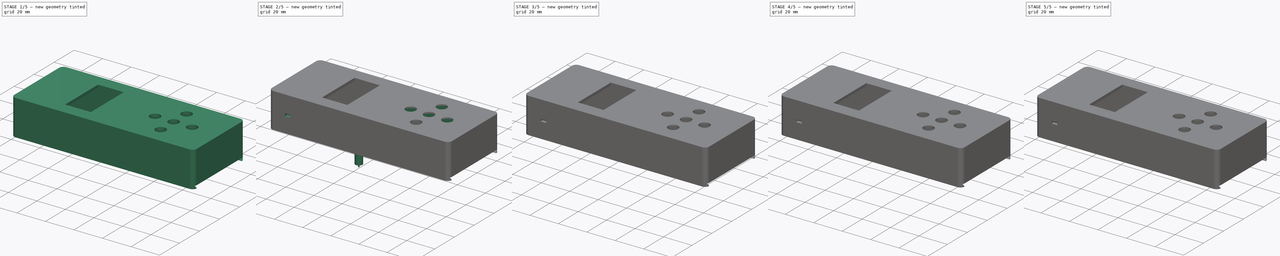
[diagram: build sequence overview — one tinted view per stage of 5, left to right]
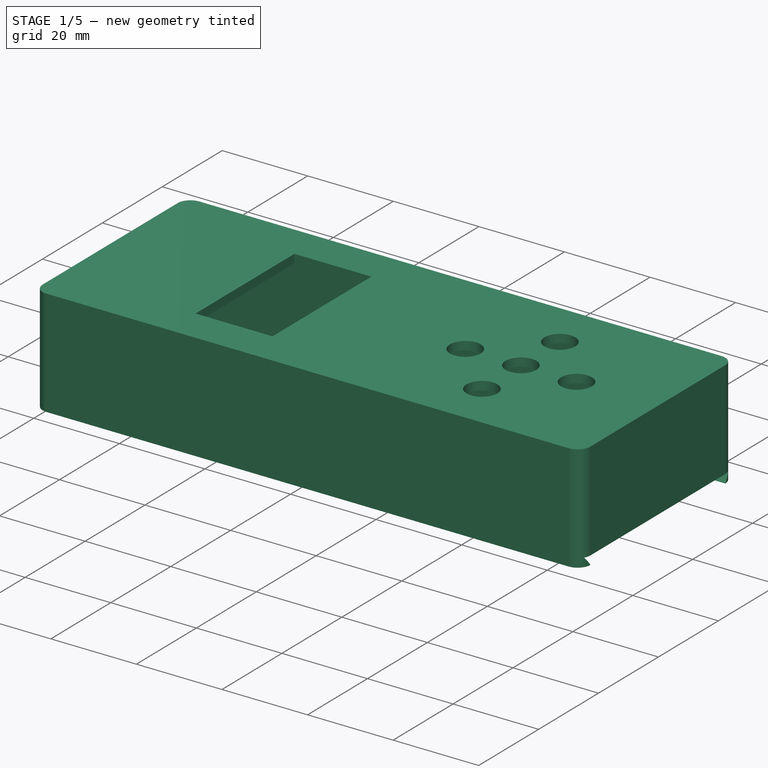
[diagram: stage 1 of 5 — iso view after this stage's code; geometry added in this stage tinted green]
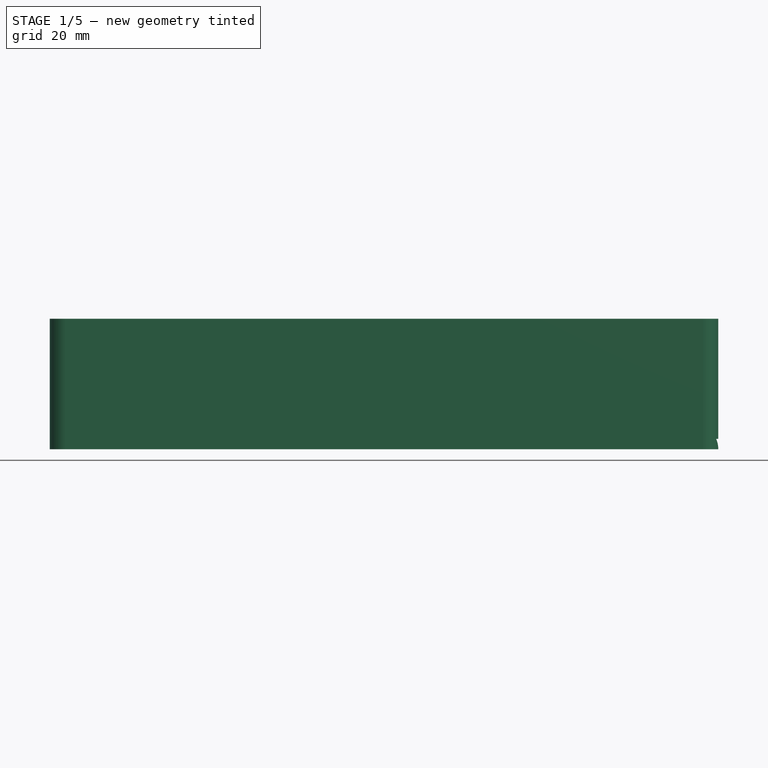
[diagram: stage 1 of 5 — front view after this stage's code; geometry added in this stage tinted green]
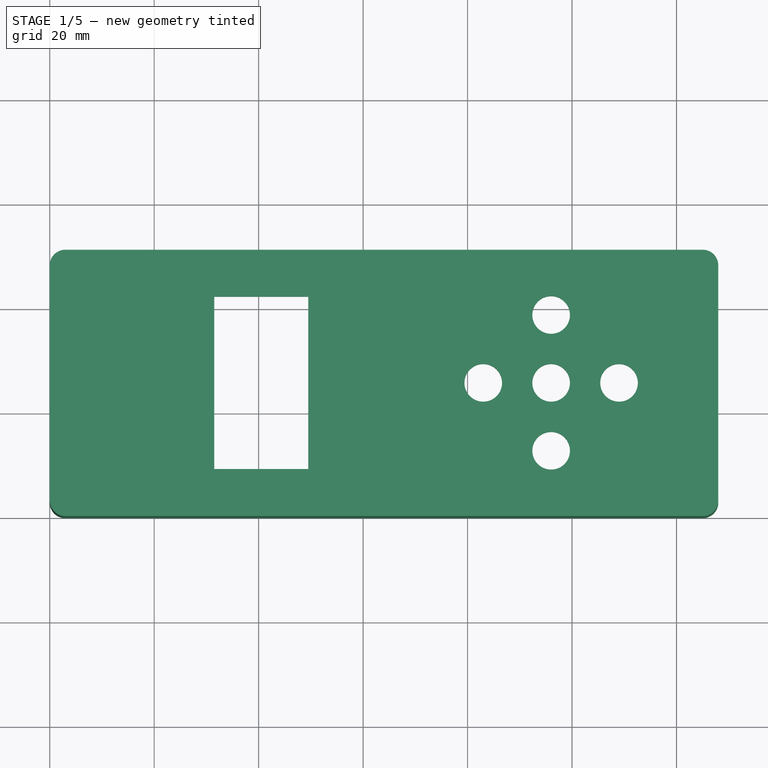
[diagram: stage 1 of 5 — top view after this stage's code; geometry added in this stage tinted green]
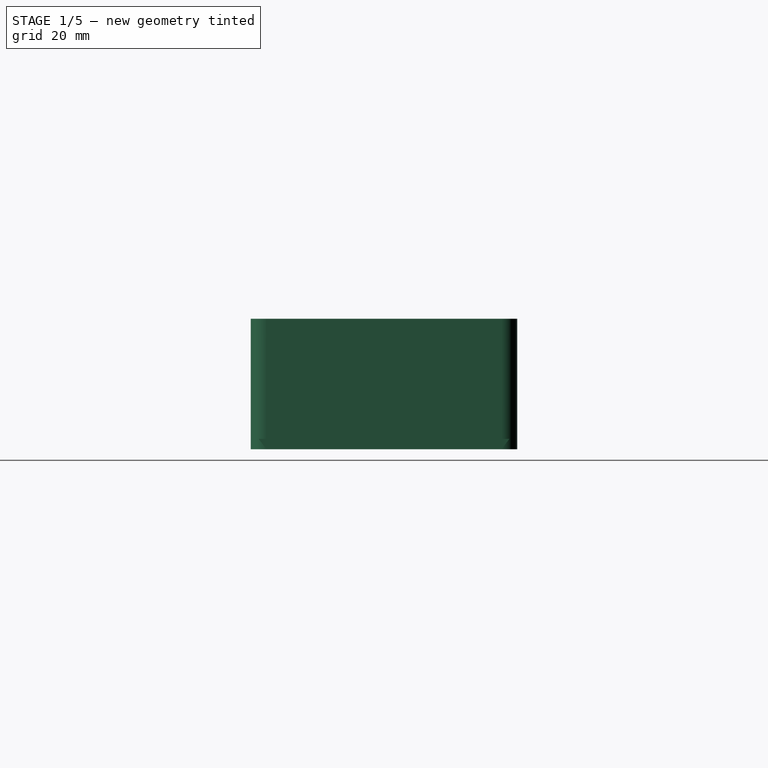
[diagram: stage 1 of 5 — right view after this stage's code; geometry added in this stage tinted green]
FCSTD DOCUMENT  (FreeCAD 0.16R)
Label: front_case_v2_3
License: All rights reserved
LicenseURL: http://en.wikipedia.org/wiki/All_rights_reserved
objects: Sketcher::SketchObject×24, PartDesign::Pocket×12, Part::Cylinder×12, PartDesign::Pad×12, Part::Box×4, Part::MultiFuse×3, Part::Fillet×1, Part::MultiCommon×1
note: 93 computed .brp shape members not serialized (recipe doc carries the construction recipe); baked Part::Feature solids carry a one-line shape summary decoded from their .brp

FEATURE [Part::Box] Box019  label="base"
  Height = 25
  Length = 128
  Width = 51
FEATURE [Sketcher::SketchObject] Sketch019
  ExternalGeometry = -> [Box019]
  Placement = pos=(0,0,0) rot=(1,0,0;3.14159rad)
  Support = -> Box019 [Face5]
  sketch-geometry (4):
    g0: LineSegment StartX=3 StartY=-3 StartZ=0 EndX=125 EndY=-3 EndZ=0
    g1: LineSegment StartX=125 StartY=-3 StartZ=0 EndX=125 EndY=-48 EndZ=0
    g2: LineSegment StartX=125 StartY=-48 StartZ=0 EndX=3 EndY=-48 EndZ=0
    g3: LineSegment StartX=3 StartY=-48 StartZ=0 EndX=3 EndY=-3 EndZ=0
  constraints (12):
    c: Coincident(g0,g1)
    c: Coincident(g1,g2)
    c: Coincident(g2,g3)
    c: Coincident(g3,g0)
    c: Horizontal(g0)
    c: Horizontal(g2)
    c: Vertical(g1)
    c: Vertical(g3)
    c: Distance(g0,g-3) = 3
    c: Distance(g0,g-4) = 3
    c: Distance(g0,g-6) = 3
    c: Distance(g2,g-5) = 3
FEATURE [PartDesign::Pocket] Pocket019  label="Pocket_base001"
  Length = 23
  Sketch = -> Sketch019
  Type = 0
FEATURE [Sketcher::SketchObject] Sketch020
  ExternalGeometry = -> [Pocket019]
  Placement = pos=(128,0,0) rot=(0.57735,0.57735,0.57735;2.0944rad)
  Support = -> Pocket019 [Face6]
  sketch-geometry (4):
    g0: LineSegment StartX=48 StartY=0 StartZ=0 EndX=49.5 EndY=2 EndZ=0
    g1: LineSegment StartX=49.5 StartY=2 StartZ=0 EndX=1.5 EndY=2 EndZ=0
    g2: LineSegment StartX=1.5 StartY=2 StartZ=0 EndX=3 EndY=0 EndZ=0
    g3: LineSegment StartX=3 StartY=0 StartZ=0 EndX=48 EndY=0 EndZ=0
  constraints (12):
    c: Coincident(g0,g1)
    c: Horizontal(g1)
    c: Coincident(g1,g2)
    c: Coincident(g2,g3)
    c: Horizontal(g3)
    c: Coincident(g3,g0)
    c: Distance(g0,g-3) = 1.5
    c: Distance(g1,g-5) = 1.5
    c: PointOnObject(g0,g-4)
    c: Distance(g0,g-4) = 3
    c: Distance(g-1,g2) = 3
    c: Distance(g1,g-4) = 2
FEATURE [PartDesign::Pocket] Pocket020
  Length = 126
  Sketch = -> Sketch020
  Type = 0
FEATURE [Part::Fillet] Fillet001
  Base = -> Box019
  Edges = 4 edges r=3: [Edge1,Edge3,Edge5,Edge7]
FEATURE [Part::MultiCommon] Common
  Shapes = -> [Pocket020,Fillet001]
FEATURE [Sketcher::SketchObject] Sketch026
  ExternalGeometry = -> [Common]
  Placement = pos=(0,51,0) rot=(0,0.707107,0.707107;3.14159rad)
  Support = -> Common [Face6]
  sketch-geometry (8):
    g0: LineSegment StartX=-17.3 StartY=20 StartZ=0 EndX=-10.3 EndY=20 EndZ=0
    g1: LineSegment StartX=-10.3 StartY=20 StartZ=0 EndX=-10.3 EndY=17 EndZ=0
    g2: LineSegment StartX=-10.3 StartY=17 StartZ=0 EndX=-17.3 EndY=17 EndZ=0
    g3: LineSegment StartX=-17.3 StartY=17 StartZ=0 EndX=-17.3 EndY=20 EndZ=0
    g4: LineSegment StartX=-104 StartY=12 StartZ=0 EndX=-97 EndY=12 EndZ=0
    g5: LineSegment StartX=-97 StartY=12 StartZ=0 EndX=-97 EndY=15 EndZ=0
    g6: LineSegment StartX=-97 StartY=15 StartZ=0 EndX=-104 EndY=15 EndZ=0
    g7: LineSegment StartX=-104 StartY=15 StartZ=0 EndX=-104 EndY=12 EndZ=0
  constraints (24):
    c: Coincident(g0,g1)
    c: Coincident(g1,g2)
    c: Coincident(g2,g3)
    c: Coincident(g3,g0)
    c: Horizontal(g0)
    c: Horizontal(g2)
    c: Vertical(g1)
    c: Vertical(g3)
    c: Distance(g0,g-3) = 10.3
    c: Distance(g2,g1) = 7
    c: Distance(g0,g2) = 3
    c: Coincident(g4,g5)
    c: Coincident(g5,g6)
    c: Coincident(g6,g7)
    c: Coincident(g7,g4)
    c: Horizontal(g4)
    c: Horizontal(g6)
    c: Vertical(g5)
    c: Vertical(g7)
    c: Distance(g7) = 3
    c: Distance(g4) = 7
    c: Distance(g5,g-3) = 97
    c: Distance(g0,g-4) = 5
    c: Distance(g6,g-4) = 10
FEATURE [PartDesign::Pocket] Pocket022  label="Pocket_usb_inner"
  Length = 3
  Sketch = -> Sketch026
  Type = 0
FEATURE [Sketcher::SketchObject] Sketch027
  ExternalGeometry = -> [Pocket022]
  Placement = pos=(0,51,0) rot=(0,0.707107,0.707107;3.14159rad)
  Support = -> Pocket022 [Face6]
  sketch-geometry (8):
    g0: LineSegment StartX=-7.8 StartY=23 StartZ=0 EndX=-19.8 EndY=23 EndZ=0
    g1: LineSegment StartX=-19.8 StartY=23 StartZ=0 EndX=-19.8 EndY=14 EndZ=0
    g2: LineSegment StartX=-19.8 StartY=14 StartZ=0 EndX=-7.8 EndY=14 EndZ=0
    g3: LineSegment StartX=-7.8 StartY=14 StartZ=0 EndX=-7.8 EndY=23 EndZ=0
    g4: LineSegment StartX=-106.5 StartY=18 StartZ=0 EndX=-94.5 EndY=18 EndZ=0
    g5: LineSegment StartX=-94.5 StartY=18 StartZ=0 EndX=-94.5 EndY=9 EndZ=0
    g6: LineSegment StartX=-94.5 StartY=9 StartZ=0 EndX=-106.5 EndY=9 EndZ=0
    g7: LineSegment StartX=-106.5 StartY=9 StartZ=0 EndX=-106.5 EndY=18 EndZ=0
  constraints (24):
    c: Coincident(g0,g1)
    c: Coincident(g1,g2)
    c: Coincident(g2,g3)
    c: Coincident(g3,g0)
    c: Horizontal(g0)
    c: Horizontal(g2)
    c: Vertical(g1)
    c: Vertical(g3)
    c: Coincident(g4,g5)
    c: Coincident(g5,g6)
    c: Coincident(g6,g7)
    c: Coincident(g7,g4)
    c: Horizontal(g4)
    c: Horizontal(g6)
    c: Vertical(g5)
    c: Vertical(g7)
    c: Distance(g3) = 9
    c: Distance(g0) = 12
    c: DistanceX(g0,g-1) = 7.8
    c: Distance(g7) = 9
    c: Distance(g4) = 12
    c: DistanceX(g5,g-1) = 94.5
    c: DistanceY(g4,g-7) = 7
    c: DistanceY(g0,g-7) = 2
FEATURE [PartDesign::Pocket] Pocket023  label="Pocket_usb_outer"
  Length = 1.5
  Sketch = -> Sketch027
  Type = 0
FEATURE [Sketcher::SketchObject] Sketch029
  ExternalGeometry = -> [Pocket023]
  Placement = pos=(0,0,2) rot=(1,0,0;3.14159rad)
  Support = -> Pocket023 [Face22]
  sketch-geometry (4):
    g0: LineSegment StartX=18.1 StartY=15.25 StartZ=0 EndX=9.3 EndY=15.25 EndZ=0
    g1: LineSegment StartX=9.3 StartY=15.25 StartZ=0 EndX=9.3 EndY=11.75 EndZ=0
    g2: LineSegment StartX=9.3 StartY=11.75 StartZ=0 EndX=18.1 EndY=11.75 EndZ=0
    g3: LineSegment StartX=18.1 StartY=11.75 StartZ=0 EndX=18.1 EndY=15.25 EndZ=0
  constraints (10):
    c: Coincident(g0,g1)
    c: Coincident(g1,g2)
    c: Coincident(g2,g3)
    c: Coincident(g3,g0)
    c: Horizontal(g0)
    c: Horizontal(g2)
    c: Vertical(g1)
    c: Vertical(g3)
    c: Distance(g1,g2) = 8.8
    c: Distance(g0,g2) = 3.5
FEATURE [PartDesign::Pocket] Pocket024  label="Pocket_switch"
  Length = 3
  Sketch = -> Sketch029
  Type = 0
FEATURE [Sketcher::SketchObject] Sketch031
  ExternalGeometry = -> [Pocket024]
  Placement = pos=(0,0,25) rot=(0,0,1;0rad)
  Support = -> Pocket024 [Face2]
  sketch-geometry (9):
    g0: LineSegment StartX=31.5 StartY=42 StartZ=0 EndX=49.5 EndY=42 EndZ=0
    g1: LineSegment StartX=49.5 StartY=42 StartZ=0 EndX=49.5 EndY=9 EndZ=0
    g2: LineSegment StartX=49.5 StartY=9 StartZ=0 EndX=31.5 EndY=9 EndZ=0
    g3: LineSegment StartX=31.5 StartY=9 StartZ=0 EndX=31.5 EndY=42 EndZ=0
    g4: Circle CenterX=96 CenterY=38.5 CenterZ=0 NormalX=0 NormalY=0 NormalZ=1 Radius=3.6
    g5: Circle CenterX=83 CenterY=25.5 CenterZ=0 NormalX=0 NormalY=0 NormalZ=1 Radius=3.6
    g6: Circle CenterX=96 CenterY=25.5 CenterZ=0 NormalX=0 NormalY=0 NormalZ=1 Radius=3.6
    g7: Circle CenterX=109 CenterY=25.5 CenterZ=0 NormalX=0 NormalY=0 NormalZ=1 Radius=3.6
    g8: Circle CenterX=96 CenterY=12.5 CenterZ=0 NormalX=0 NormalY=0 NormalZ=1 Radius=3.6
  constraints (27):
    c: Coincident(g0,g1)
    c: Coincident(g1,g2)
    c: Coincident(g2,g3)
    c: Coincident(g3,g0)
    c: Horizontal(g0)
    c: Horizontal(g2)
    c: Vertical(g1)
    c: Vertical(g3)
    c: Distance(g0,g0) = 18
    c: Distance(g0,g2) = 33
    c: Distance(g0,g-3) = 9
    c: Distance(g2,g-5) = 31.5
    c: Distance(g6,g-5) = 96
    c: Distance(g6,g-4) = 25.5
    c: Radius(g6) = 3.6
    c: Radius(g5) = 3.6
    c: Radius(g4) = 3.6
    c: Radius(g7) = 3.6
    c: Distance(g5,g-4) = 25.5
    c: Distance(g7,g-4) = 25.5
    c: Distance(g5,g6) = 13
    c: Distance(g7,g6) = 13
    c: Distance(g4,g-5) = 96
    c: Radius(g8) = 3.6
    c: Distance(g8,g-5) = 96
    c: Distance(g8,g6) = 13
    c: Distance(g4,g6) = 13
FEATURE [PartDesign::Pocket] Pocket025  label="Pocket_screen001"
  Length = 2
  Sketch = -> Sketch031
  Type = 0
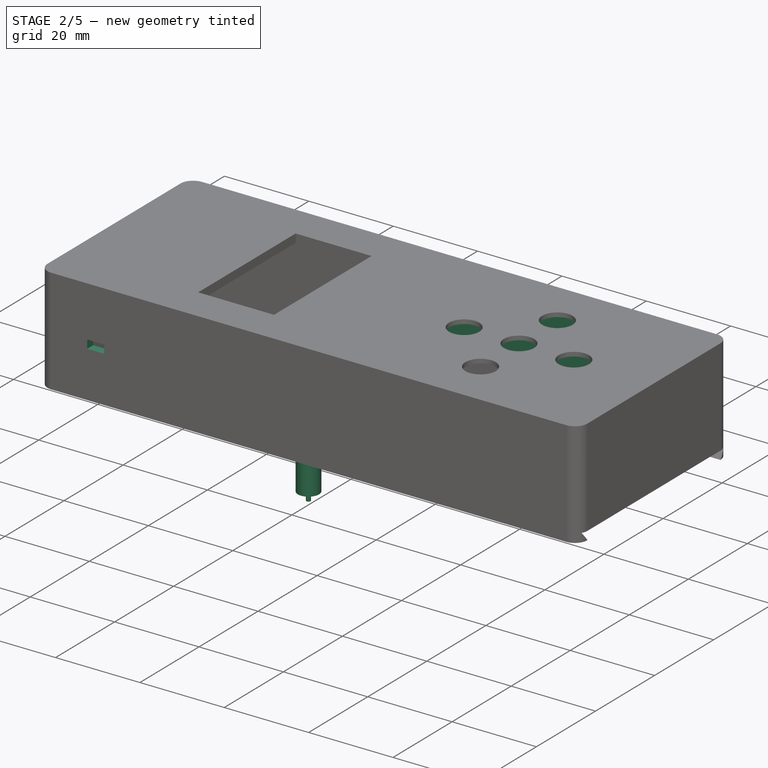
[diagram: stage 2 of 5 — iso view after this stage's code; geometry added in this stage tinted green]
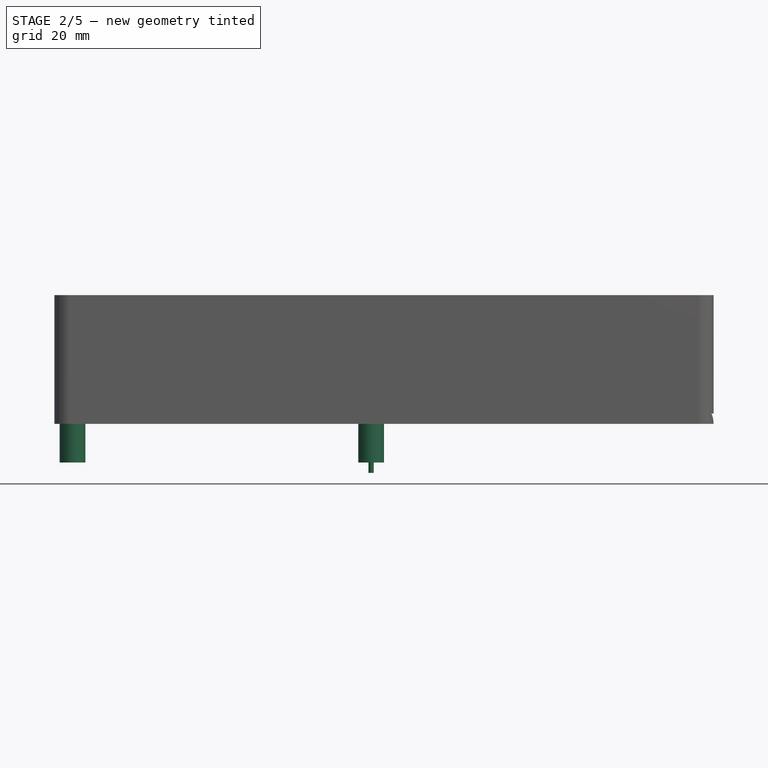
[diagram: stage 2 of 5 — front view after this stage's code; geometry added in this stage tinted green]
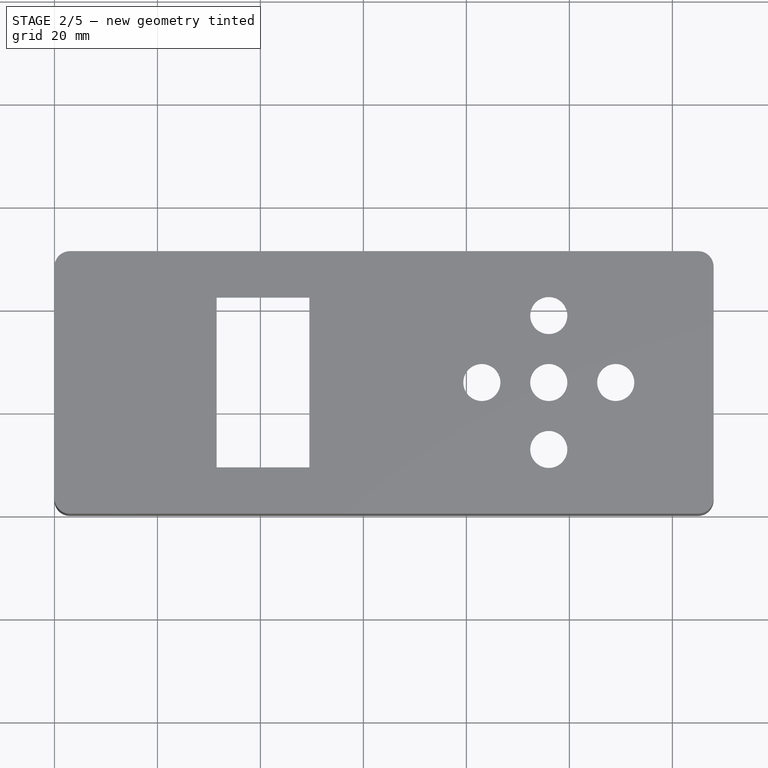
[diagram: stage 2 of 5 — top view after this stage's code; geometry added in this stage tinted green]
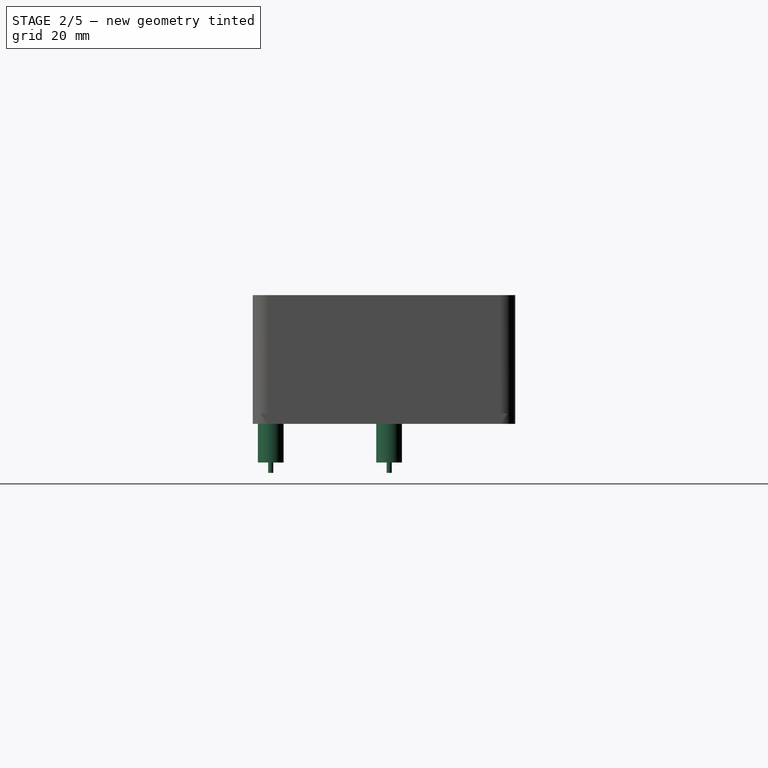
[diagram: stage 2 of 5 — right view after this stage's code; geometry added in this stage tinted green]
FEATURE [Part::Cylinder] Cylinder005
  Angle = 360
  Height = 7.5
  Placement = pos=(3.5,26.5,-7.5) rot=(0,0,1;0rad)
  Radius = 2.5
FEATURE [Part::Cylinder] Cylinder006
  Angle = 360
  Height = 7.5
  Placement = pos=(61.5,3.5,-7.5) rot=(0,0,1;0rad)
  Radius = 2.5
FEATURE [Part::Cylinder] Cylinder007
  Angle = 360
  Height = 7.5
  Placement = pos=(61.5,26.5,-7.5) rot=(0,0,1;0rad)
  Radius = 2.5
FEATURE [Sketcher::SketchObject] Sketch034
  Placement = pos=(61.5,3.5,-7.5) rot=(1,0,0;3.14159rad)
  Support = -> Cylinder006 [Face3]
  sketch-geometry (1):
    g0: Circle CenterX=0 CenterY=0 CenterZ=0 NormalX=0 NormalY=0 NormalZ=1 Radius=0.5
  constraints (2):
    c: Coincident(g0,g-1)
    c: Radius(g0) = 0.5
FEATURE [PartDesign::Pad] Pad006
  Length = 2
  Length2 = 100
  Placement = pos=(61.5,3.5,-7.5) rot=(0,0,1;0rad)
  Sketch = -> Sketch034
  Type = 0
FEATURE [Sketcher::SketchObject] Sketch035
  Placement = pos=(61.5,26.5,-7.5) rot=(1,0,0;3.14159rad)
  Support = -> Cylinder007 [Face3]
  sketch-geometry (1):
    g0: Circle CenterX=0 CenterY=0 CenterZ=0 NormalX=0 NormalY=0 NormalZ=1 Radius=0.5
  constraints (2):
    c: Coincident(g0,g-1)
    c: Radius(g0) = 0.5
FEATURE [PartDesign::Pad] Pad007
  Length = 2
  Length2 = 100
  Placement = pos=(61.5,26.5,-7.5) rot=(0,0,1;0rad)
  Sketch = -> Sketch035
  Type = 0
FEATURE [Sketcher::SketchObject] Sketch
  ExternalGeometry = -> [Pocket025]
  Placement = pos=(0,0,2) rot=(1,0,0;3.14159rad)
  Support = -> Pocket025 [Face31]
  sketch-geometry (20):
    g0: LineSegment StartX=76.6375 StartY=-19.25 StartZ=0 EndX=89.1375 EndY=-19.25 EndZ=0
    g1: LineSegment StartX=89.1375 StartY=-19.25 StartZ=0 EndX=89.1375 EndY=-31.75 EndZ=0
    g2: LineSegment StartX=89.1375 StartY=-31.75 StartZ=0 EndX=76.6375 EndY=-31.75 EndZ=0
    g3: LineSegment StartX=76.6375 StartY=-31.75 StartZ=0 EndX=76.6375 EndY=-19.25 EndZ=0
    g4: LineSegment StartX=89.75 StartY=-6.25 StartZ=0 EndX=102.25 EndY=-6.25 EndZ=0
    g5: LineSegment StartX=102.25 StartY=-6.25 StartZ=0 EndX=102.25 EndY=-18.75 EndZ=0
    g6: LineSegment StartX=102.25 StartY=-18.75 StartZ=0 EndX=89.75 EndY=-18.75 EndZ=0
    g7: LineSegment StartX=89.75 StartY=-18.75 StartZ=0 EndX=89.75 EndY=-6.25 EndZ=0
    g8: LineSegment StartX=89.75 StartY=-19.25 StartZ=0 EndX=102.25 EndY=-19.25 EndZ=0
    g9: LineSegment StartX=102.25 StartY=-19.25 StartZ=0 EndX=102.25 EndY=-31.75 EndZ=0
    g10: LineSegment StartX=102.25 StartY=-31.75 StartZ=0 EndX=89.75 EndY=-31.75 EndZ=0
    g11: LineSegment StartX=89.75 StartY=-31.75 StartZ=0 EndX=89.75 EndY=-19.25 EndZ=0
    g12: LineSegment StartX=102.748 StartY=-19.25 StartZ=0 EndX=115.248 EndY=-19.25 EndZ=0
    g13: LineSegment StartX=115.248 StartY=-19.25 StartZ=0 EndX=115.248 EndY=-31.75 EndZ=0
    g14: LineSegment StartX=115.248 StartY=-31.75 StartZ=0 EndX=102.748 EndY=-31.75 EndZ=0
    g15: LineSegment StartX=102.748 StartY=-31.75 StartZ=0 EndX=102.748 EndY=-19.25 EndZ=0
    g16: LineSegment StartX=89.75 StartY=-32.25 StartZ=0 EndX=102.25 EndY=-32.25 EndZ=0
    g17: LineSegment StartX=102.25 StartY=-32.25 StartZ=0 EndX=102.25 EndY=-44.75 EndZ=0
    g18: LineSegment StartX=102.25 StartY=-44.75 StartZ=0 EndX=89.75 EndY=-44.75 EndZ=0
    g19: LineSegment StartX=89.75 StartY=-44.75 StartZ=0 EndX=89.75 EndY=-32.25 EndZ=0
  constraints (60):
    c: Coincident(g0,g1)
    c: Coincident(g1,g2)
    c: Coincident(g2,g3)
    c: Coincident(g3,g0)
    c: Horizontal(g0)
    c: Horizontal(g2)
    c: Vertical(g1)
    c: Vertical(g3)
    c: Coincident(g4,g5)
    c: Coincident(g5,g6)
    c: Coincident(g6,g7)
    c: Coincident(g7,g4)
    c: Horizontal(g4)
    c: Horizontal(g6)
    c: Vertical(g5)
    c: Vertical(g7)
    c: Coincident(g8,g9)
    c: Coincident(g9,g10)
    c: Coincident(g10,g11)
    c: Coincident(g11,g8)
    c: Horizontal(g8)
    c: Horizontal(g10)
    c: Vertical(g9)
    c: Vertical(g11)
    c: Coincident(g12,g13)
    c: Coincident(g13,g14)
    c: Coincident(g14,g15)
    c: Coincident(g15,g12)
    c: Horizontal(g12)
    c: Horizontal(g14)
    c: Vertical(g13)
    c: Vertical(g15)
    c: Coincident(g16,g17)
    c: Coincident(g17,g18)
    c: Coincident(g18,g19)
    c: Coincident(g19,g16)
    c: Horizontal(g16)
    c: Horizontal(g18)
    c: Vertical(g17)
    c: Vertical(g19)
    c: Equal(g16,g19)
    c: Equal(g19,g4)
    c: Equal(g4,g7)
    c: Equal(g7,g8)
    c: Equal(g8,g11)
    c: Equal(g11,g12)
    c: Equal(g12,g15)
    c: Distance(g16) = 12.5
    c: Equal(g19,g0)
    c: Equal(g0,g3)
    c: DistanceY(g0,g-1) = 19.25
    c: DistanceX(g-1,g0) = 76.6375
    c: DistanceX(g-1,g16) = 89.75
    c: DistanceY(g16,g-1) = 32.25
    c: DistanceX(g-1,g8) = 89.75
    c: DistanceY(g8,g-1) = 19.25
    c: DistanceX(g-1,g12) = 102.748
    c: DistanceY(g12,g-1) = 19.25
    c: DistanceX(g-1,g4) = 89.75
    c: DistanceY(g4,g-1) = 6.25
FEATURE [PartDesign::Pocket] Pocket  label="PocketButtons"
  Length = 22
  Sketch = -> Sketch
  Type = 0
FEATURE [Sketcher::SketchObject] Sketch043
  Placement = pos=(0,3,0) rot=(0,0.707107,0.707107;3.14159rad)
  Support = -> Pocket [Face40]
  sketch-geometry (4):
    g0: LineSegment StartX=-15.5 StartY=13 StartZ=0 EndX=-11.5 EndY=13 EndZ=0
    g1: LineSegment StartX=-11.5 StartY=13 StartZ=0 EndX=-11.5 EndY=11 EndZ=0
    g2: LineSegment StartX=-11.5 StartY=11 StartZ=0 EndX=-15.5 EndY=11 EndZ=0
    g3: LineSegment StartX=-15.5 StartY=11 StartZ=0 EndX=-15.5 EndY=13 EndZ=0
  constraints (12):
    c: Coincident(g0,g1)
    c: Coincident(g1,g2)
    c: Coincident(g2,g3)
    c: Coincident(g3,g0)
    c: Horizontal(g0)
    c: Horizontal(g2)
    c: Vertical(g1)
    c: Vertical(g3)
    c: DistanceX(g0,g0) = 4
    c: DistanceY(g2,g0) = 2
    c: DistanceX(g1,g-1) = 11.5
    c: DistanceY(g-1,g1) = 11
FEATURE [PartDesign::Pocket] Pocket028
  Length = 3
  Sketch = -> Sketch043
  Type = 0
FEATURE [Sketcher::SketchObject] Sketch044
  ExternalGeometry = -> [Pocket028]
  Placement = pos=(0,3,0) rot=(0,0.707107,0.707107;3.14159rad)
  Support = -> Pocket028 [Face42]
  sketch-geometry (4):
    g0: LineSegment StartX=-18.5 StartY=14 StartZ=0 EndX=-8.5 EndY=14 EndZ=0
    g1: LineSegment StartX=-8.5 StartY=14 StartZ=0 EndX=-8.5 EndY=10 EndZ=0
    g2: LineSegment StartX=-8.5 StartY=10 StartZ=0 EndX=-18.5 EndY=10 EndZ=0
    g3: LineSegment StartX=-18.5 StartY=10 StartZ=0 EndX=-18.5 EndY=14 EndZ=0
  constraints (12):
    c: Coincident(g0,g1)
    c: Coincident(g1,g2)
    c: Coincident(g2,g3)
    c: Coincident(g3,g0)
    c: Horizontal(g0)
    c: Horizontal(g2)
    c: Vertical(g1)
    c: Vertical(g3)
    c: DistanceX(g0,g0) = 10
    c: DistanceY(g2,g0) = 4
    c: DistanceX(g0,g-1) = 18.5
    c: DistanceY(g-1,g0) = 14
FEATURE [PartDesign::Pocket] Pocket029
  Length = 1
  Sketch = -> Sketch044
  Type = 0
FEATURE [Sketcher::SketchObject] Sketch045
  ExternalGeometry = -> [Pocket029]
  Placement = pos=(0,48,0) rot=(1,0,0;1.5708rad)
  Support = -> Pocket029 [Face48]
  sketch-geometry (4):
    g0: LineSegment StartX=62 StartY=21 StartZ=0 EndX=122 EndY=21 EndZ=0
    g1: LineSegment StartX=122 StartY=21 StartZ=0 EndX=122 EndY=6 EndZ=0
    g2: LineSegment StartX=122 StartY=6 StartZ=0 EndX=62 EndY=6 EndZ=0
    g3: LineSegment StartX=62 StartY=6 StartZ=0 EndX=62 EndY=21 EndZ=0
  constraints (12):
    c: Coincident(g0,g1)
    c: Coincident(g1,g2)
    c: Coincident(g2,g3)
    c: Coincident(g3,g0)
    c: Horizontal(g0)
    c: Horizontal(g2)
    c: Vertical(g1)
    c: Vertical(g3)
    c: DistanceX(g0,g0) = 60
    c: DistanceY(g2,g0) = 15
    c: DistanceX(g-1,g0) = 62
    c: DistanceY(g0,g-3) = 4
FEATURE [PartDesign::Pocket] Pocket030
  Length = 1
  Sketch = -> Sketch045
  Type = 0
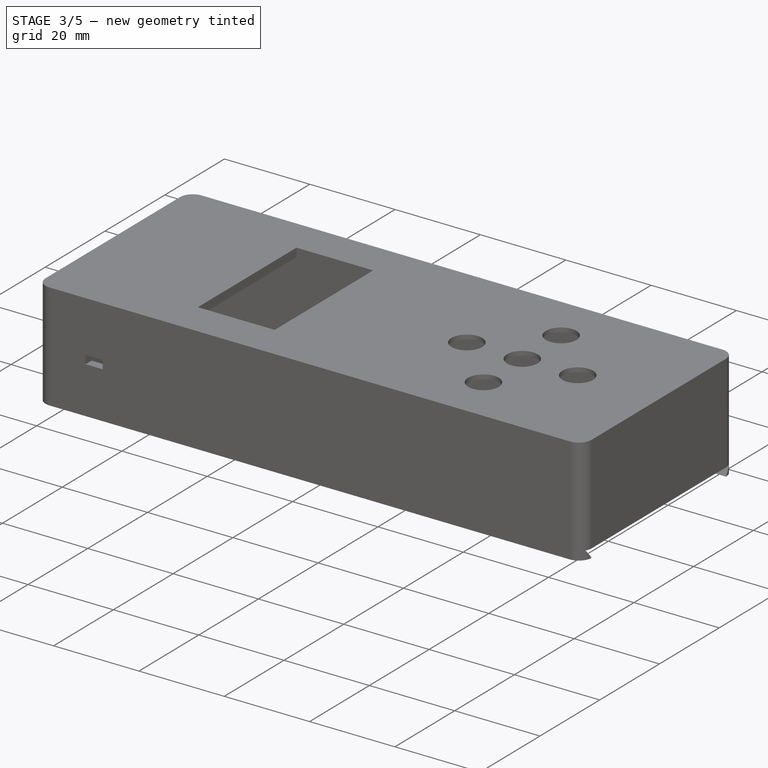
[diagram: stage 3 of 5 — iso view after this stage's code; geometry added in this stage tinted green]
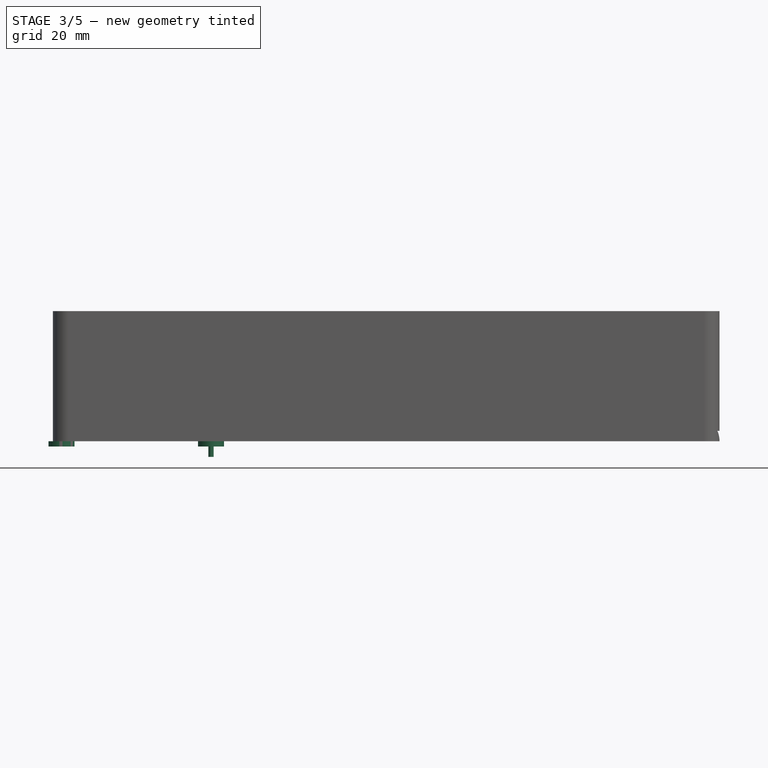
[diagram: stage 3 of 5 — front view after this stage's code; geometry added in this stage tinted green]
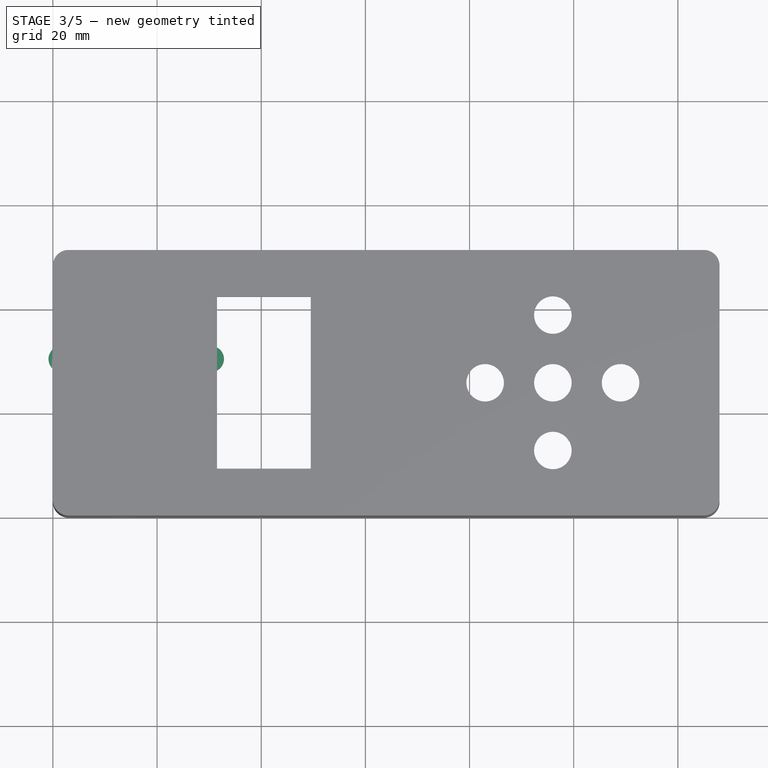
[diagram: stage 3 of 5 — top view after this stage's code; geometry added in this stage tinted green]
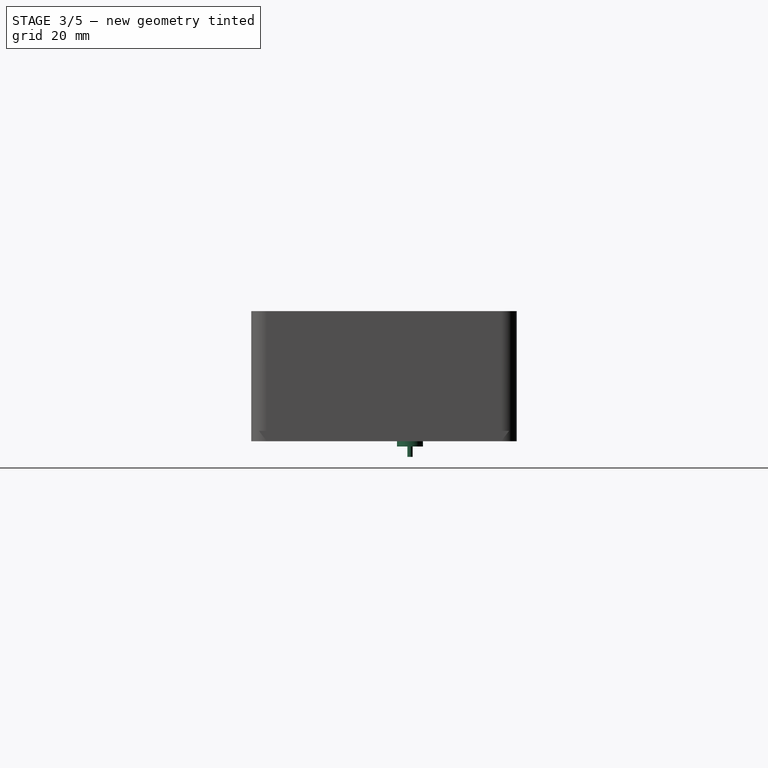
[diagram: stage 3 of 5 — right view after this stage's code; geometry added in this stage tinted green]
FEATURE [Part::Box] Box020  label="Cube001"
  Height = 1
  Length = 65
  Width = 30
FEATURE [Part::Cylinder] Cylinder004
  Angle = 360
  Height = 7.5
  Placement = pos=(3.5,3.5,-7.5) rot=(0,0,1;0rad)
  Radius = 2.5
FEATURE [Sketcher::SketchObject] Sketch032
  Placement = pos=(3.5,3.5,-7.5) rot=(1,0,0;3.14159rad)
  Support = -> Cylinder004 [Face3]
  sketch-geometry (1):
    g0: Circle CenterX=0 CenterY=0 CenterZ=0 NormalX=0 NormalY=0 NormalZ=1 Radius=0.5
  constraints (2):
    c: Coincident(g0,g-1)
    c: Radius(g0) = 0.5
FEATURE [PartDesign::Pad] Pad004
  Length = 2
  Length2 = 100
  Placement = pos=(3.5,3.5,-7.5) rot=(0,0,1;0rad)
  Sketch = -> Sketch032
  Type = 0
FEATURE [Sketcher::SketchObject] Sketch033
  Placement = pos=(3.5,26.5,-7.5) rot=(1,0,0;3.14159rad)
  Support = -> Cylinder005 [Face3]
  sketch-geometry (1):
    g0: Circle CenterX=0 CenterY=0 CenterZ=0 NormalX=0 NormalY=0 NormalZ=1 Radius=0.5
  constraints (2):
    c: Coincident(g0,g-1)
    c: Radius(g0) = 0.5
FEATURE [PartDesign::Pad] Pad005
  Length = 2
  Length2 = 100
  Placement = pos=(3.5,26.5,-7.5) rot=(0,0,1;0rad)
  Sketch = -> Sketch033
  Type = 0
FEATURE [Part::MultiFuse] Fusion001  label="PiZero"
  Placement = pos=(59,18,23.5) rot=(0,0,1;0rad)
  Shapes = -> [Box020,Pad004,Pad005,Pad006,Pad007]
FEATURE [Part::Cylinder] Cylinder010
  Angle = 360
  Height = 1
  Placement = pos=(1.65,30.5,-1) rot=(0,0,1;0rad)
  Radius = 2.5
FEATURE [Part::Cylinder] Cylinder011
  Angle = 360
  Height = 1
  Placement = pos=(30.35,30.5,-1) rot=(0,0,1;0rad)
  Radius = 2.5
FEATURE [Sketcher::SketchObject] Sketch039
  Placement = pos=(30.35,30.5,-1) rot=(1,0,0;3.14159rad)
  Support = -> Cylinder011 [Face3]
  sketch-geometry (1):
    g0: Circle CenterX=0 CenterY=0 CenterZ=0 NormalX=0 NormalY=0 NormalZ=1 Radius=0.5
  constraints (2):
    c: Coincident(g0,g-1)
    c: Radius(g0) = 0.5
FEATURE [PartDesign::Pad] Pad011
  Length = 2
  Length2 = 100
  Placement = pos=(30.35,30.5,-1) rot=(0,0,1;0rad)
  Sketch = -> Sketch039
  Type = 0
FEATURE [Sketcher::SketchObject] Sketch042
  Placement = pos=(59,18,23.5) rot=(1,0,0;3.14159rad)
  Support = -> Fusion001 [Face4]
  sketch-geometry (4):
    g0: LineSegment StartX=9.99676 StartY=1 StartZ=0 EndX=57.2727 EndY=1 EndZ=0
    g1: LineSegment StartX=57.2727 StartY=1 StartZ=0 EndX=57.2727 EndY=-27.8014 EndZ=0
    g2: LineSegment StartX=57.2727 StartY=-27.8014 StartZ=0 EndX=9.99676 EndY=-27.8014 EndZ=0
    g3: LineSegment StartX=9.99676 StartY=-27.8014 StartZ=0 EndX=9.99676 EndY=1 EndZ=0
  constraints (9):
    c: Coincident(g0,g1)
    c: Coincident(g1,g2)
    c: Coincident(g2,g3)
    c: Coincident(g3,g0)
    c: Horizontal(g0)
    c: Horizontal(g2)
    c: Vertical(g1)
    c: Vertical(g3)
    c: DistanceY(g-1,g0) = 1
FEATURE [PartDesign::Pocket] Pocket027  label="PocketPiZero"
  Length = 1
  Placement = pos=(59,18,23.5) rot=(0,0,1;0rad)
  Sketch = -> Sketch042
  Type = 0
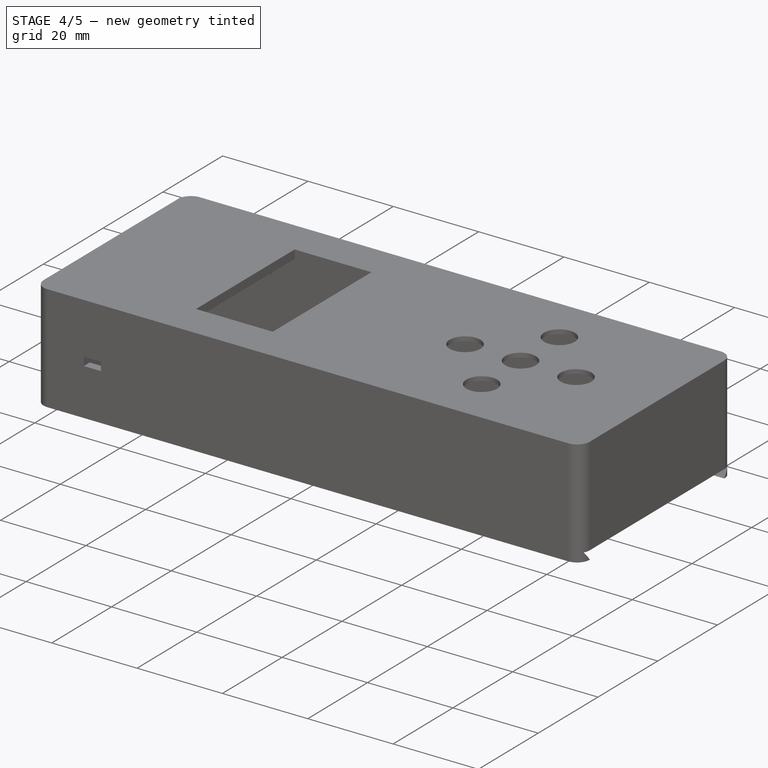
[diagram: stage 4 of 5 — iso view after this stage's code; geometry added in this stage tinted green]
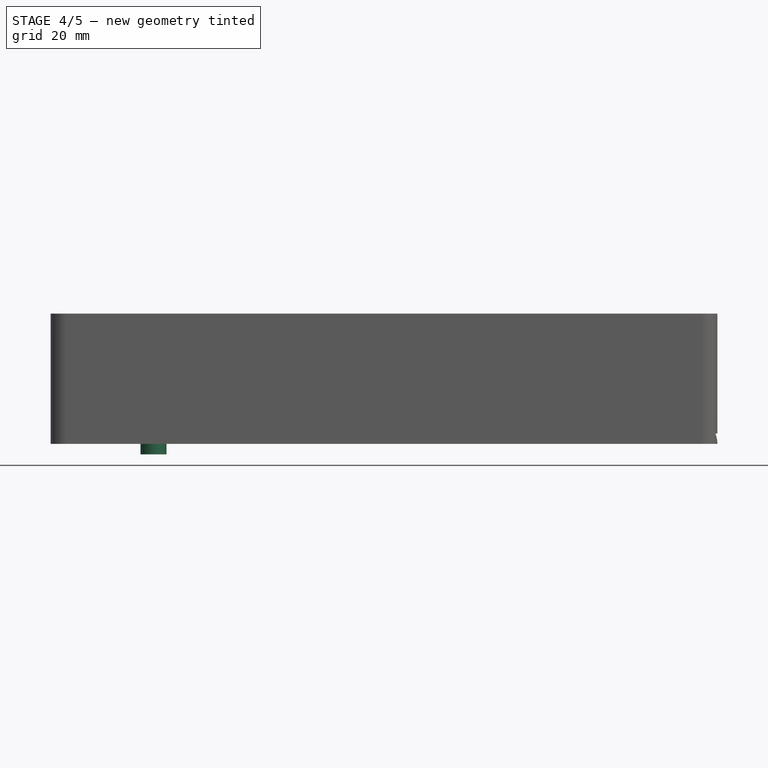
[diagram: stage 4 of 5 — front view after this stage's code; geometry added in this stage tinted green]
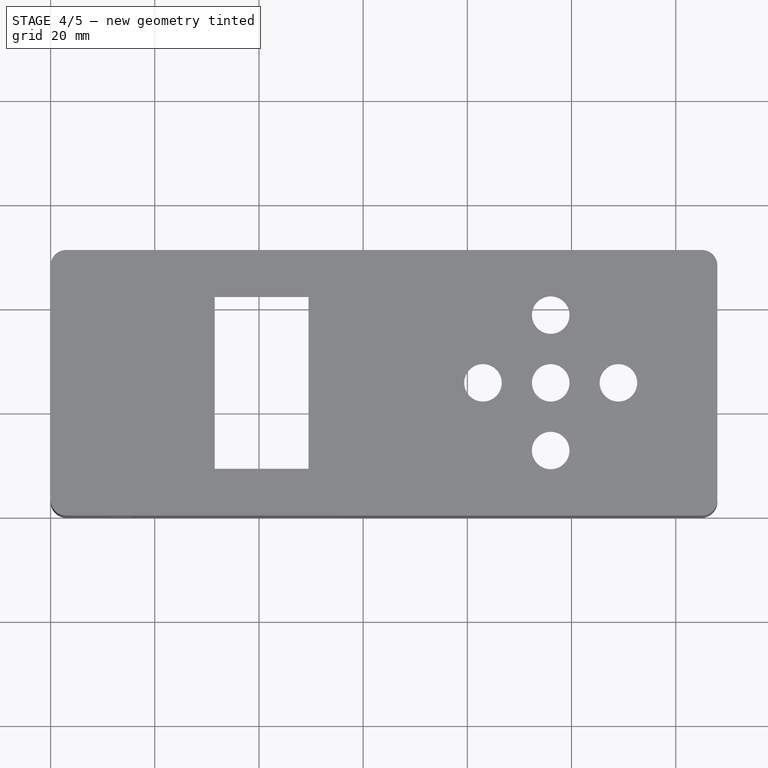
[diagram: stage 4 of 5 — top view after this stage's code; geometry added in this stage tinted green]
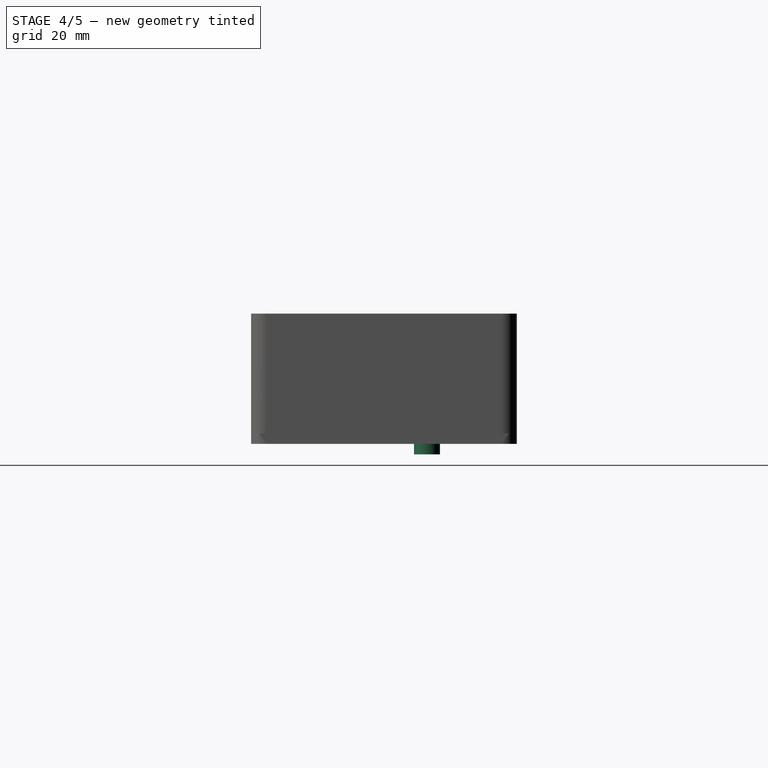
[diagram: stage 4 of 5 — right view after this stage's code; geometry added in this stage tinted green]
FEATURE [Part::Cylinder] Cylinder003
  Angle = 360
  Height = 2
  Placement = pos=(19.75,33.75,-2) rot=(0,0,1;0rad)
  Radius = 2.5
FEATURE [Part::Box] Box021  label="Cube002"
  Height = 1
  Length = 32
  Width = 35.5
FEATURE [Part::Cylinder] Cylinder008
  Angle = 360
  Height = 1
  Placement = pos=(1.65,5,-1) rot=(0,0,1;0rad)
  Radius = 2.5
FEATURE [Part::Cylinder] Cylinder009
  Angle = 360
  Height = 1
  Placement = pos=(30.35,5,-1) rot=(0,0,1;0rad)
  Radius = 2.5
FEATURE [Sketcher::SketchObject] Sketch036
  Placement = pos=(1.65,5,-1) rot=(1,0,0;3.14159rad)
  Support = -> Cylinder008 [Face3]
  sketch-geometry (1):
    g0: Circle CenterX=0 CenterY=0 CenterZ=0 NormalX=0 NormalY=0 NormalZ=1 Radius=0.5
  constraints (2):
    c: Coincident(g0,g-1)
    c: Radius(g0) = 0.5
FEATURE [PartDesign::Pad] Pad008
  Length = 2
  Length2 = 100
  Placement = pos=(1.65,5,-1) rot=(0,0,1;0rad)
  Sketch = -> Sketch036
  Type = 0
FEATURE [Sketcher::SketchObject] Sketch037
  Placement = pos=(30.35,5,-1) rot=(1,0,0;3.14159rad)
  Support = -> Cylinder009 [Face3]
  sketch-geometry (1):
    g0: Circle CenterX=0 CenterY=0 CenterZ=0 NormalX=0 NormalY=0 NormalZ=1 Radius=0.5
  constraints (2):
    c: Coincident(g0,g-1)
    c: Radius(g0) = 0.5
FEATURE [PartDesign::Pad] Pad009
  Length = 2
  Length2 = 100
  Placement = pos=(30.35,5,-1) rot=(0,0,1;0rad)
  Sketch = -> Sketch037
  Type = 0
FEATURE [Sketcher::SketchObject] Sketch038
  Placement = pos=(1.65,30.5,-1) rot=(1,0,0;3.14159rad)
  Support = -> Cylinder010 [Face3]
  sketch-geometry (1):
    g0: Circle CenterX=0 CenterY=0 CenterZ=0 NormalX=0 NormalY=0 NormalZ=1 Radius=0.5
  constraints (2):
    c: Coincident(g0,g-1)
    c: Radius(g0) = 0.5
FEATURE [PartDesign::Pad] Pad010
  Length = 2
  Length2 = 100
  Placement = pos=(1.65,30.5,-1) rot=(0,0,1;0rad)
  Sketch = -> Sketch038
  Type = 0
FEATURE [Part::MultiFuse] Fusion002  label="Screen"
  Placement = pos=(26.5,7.75,23.5) rot=(0,0,1;0rad)
  Shapes = -> [Box021,Pad008,Pad009,Pad010,Pad011]
FEATURE [Sketcher::SketchObject] Sketch041
  Placement = pos=(26.5,7.75,23.5) rot=(1,0,0;3.14159rad)
  Support = -> Fusion002 [Face5]
  sketch-geometry (4):
    g0: LineSegment StartX=5 StartY=-1.25 StartZ=0 EndX=23 EndY=-1.25 EndZ=0
    g1: LineSegment StartX=23 StartY=-1.25 StartZ=0 EndX=23 EndY=-34.25 EndZ=0
    g2: LineSegment StartX=23 StartY=-34.25 StartZ=0 EndX=5 EndY=-34.25 EndZ=0
    g3: LineSegment StartX=5 StartY=-34.25 StartZ=0 EndX=5 EndY=-1.25 EndZ=0
  constraints (12):
    c: Coincident(g0,g1)
    c: Coincident(g1,g2)
    c: Coincident(g2,g3)
    c: Coincident(g3,g0)
    c: Horizontal(g0)
    c: Horizontal(g2)
    c: Vertical(g1)
    c: Vertical(g3)
    c: DistanceX(g-2,g0) = 5
    c: Distance(g0,g0) = 18
    c: Distance(g0,g1) = 33
    c: DistanceY(g-1,g0) = -1.25
FEATURE [PartDesign::Pocket] Pocket026  label="PocketScreen"
  Length = 5
  Placement = pos=(26.5,7.75,23.5) rot=(0,0,1;0rad)
  Sketch = -> Sketch041
  Type = 1
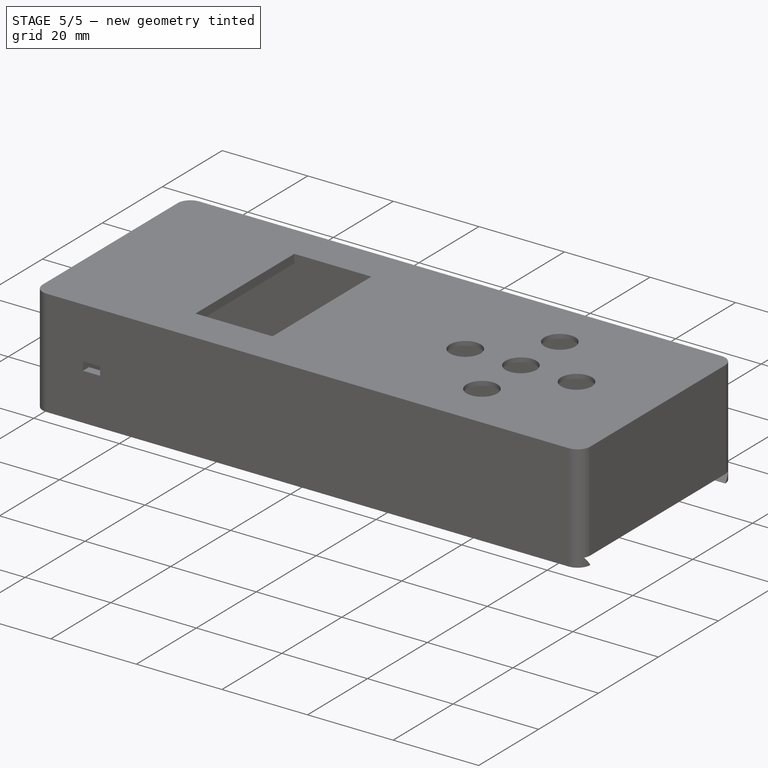
[diagram: stage 5 of 5 — iso view after this stage's code; geometry added in this stage tinted green]
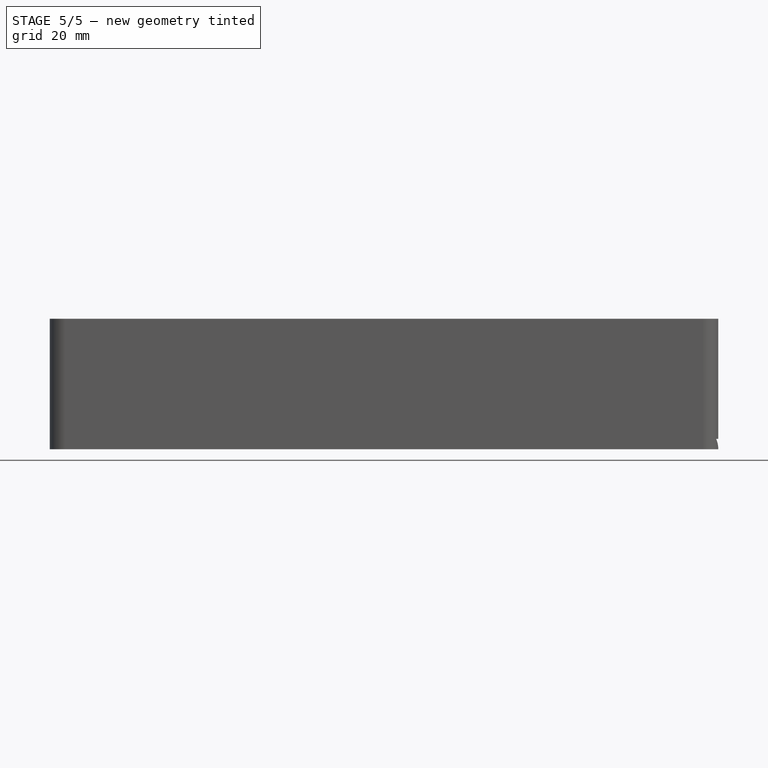
[diagram: stage 5 of 5 — front view after this stage's code; geometry added in this stage tinted green]
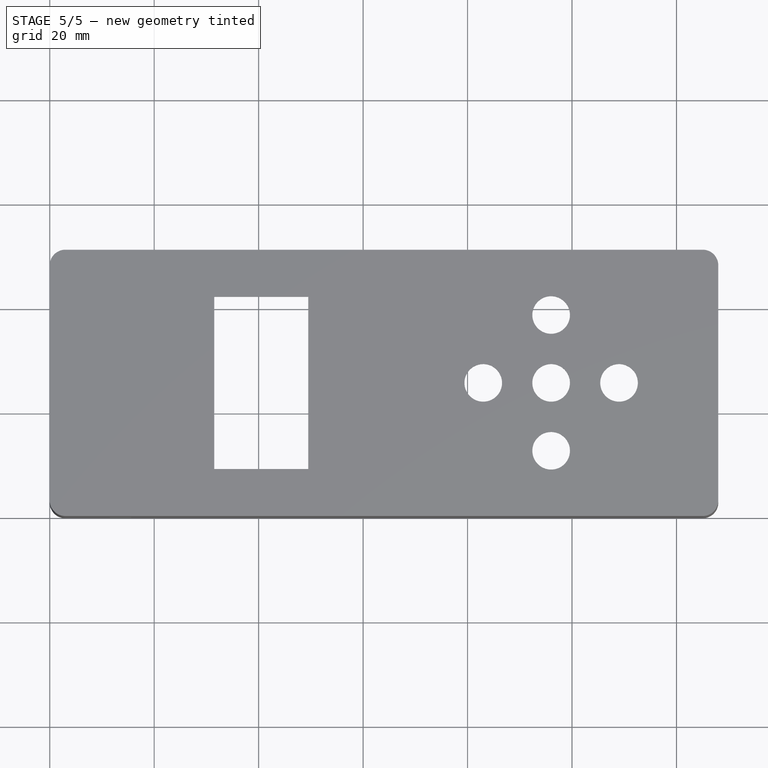
[diagram: stage 5 of 5 — top view after this stage's code; geometry added in this stage tinted green]
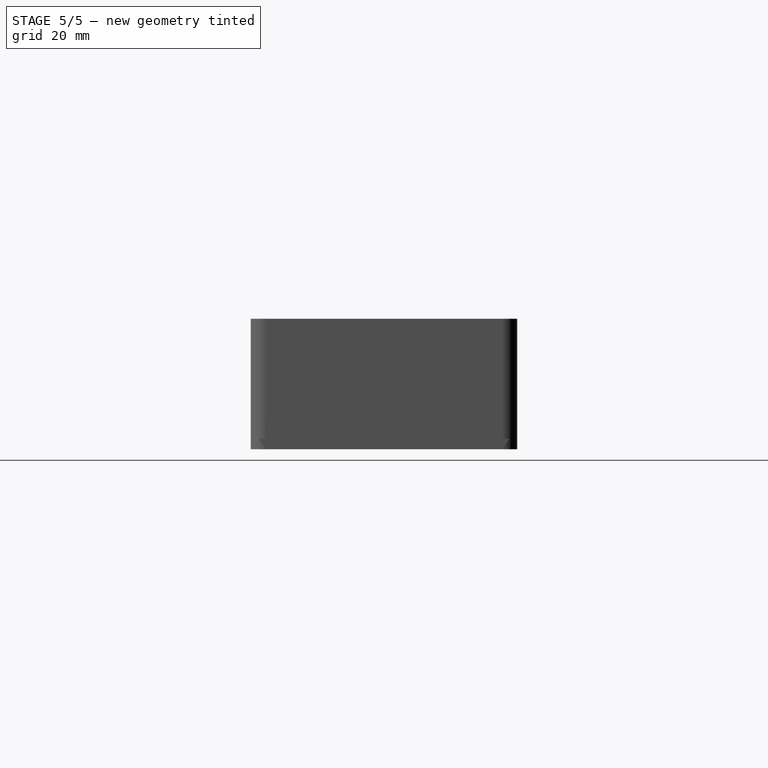
[diagram: stage 5 of 5 — right view after this stage's code; geometry added in this stage tinted green]
FEATURE [Part::Cylinder] Cylinder
  Angle = 360
  Height = 2
  Placement = pos=(4.25,1.85,-2) rot=(0,0,1;0rad)
  Radius = 2.5
FEATURE [Part::Box] Box  label="Cube"
  Height = 1
  Length = 21.6
  Width = 35.6
FEATURE [Part::Cylinder] Cylinder001
  Angle = 360
  Height = 2
  Placement = pos=(1.85,33.75,-2) rot=(0,0,1;0rad)
  Radius = 2.5
FEATURE [Part::Cylinder] Cylinder002
  Angle = 360
  Height = 2
  Placement = pos=(17.35,1.85,-2) rot=(0,0,1;0rad)
  Radius = 2.5
FEATURE [Sketcher::SketchObject] Sketch021
  Placement = pos=(1.85,33.75,-2) rot=(1,0,0;3.14159rad)
  Support = -> Cylinder001 [Face3]
  sketch-geometry (1):
    g0: Circle CenterX=0 CenterY=0 CenterZ=0 NormalX=0 NormalY=0 NormalZ=1 Radius=0.5
  constraints (2):
    c: Coincident(g0,g-1)
    c: Radius(g0) = 0.5
FEATURE [PartDesign::Pad] Pad
  Length = 2
  Length2 = 100
  Placement = pos=(1.85,33.75,-2) rot=(0,0,1;0rad)
  Sketch = -> Sketch021
  Type = 0
FEATURE [Sketcher::SketchObject] Sketch022
  Placement = pos=(4.25,1.85,-2) rot=(1,0,0;3.14159rad)
  Support = -> Cylinder [Face3]
  sketch-geometry (1):
    g0: Circle CenterX=0 CenterY=0 CenterZ=0 NormalX=0 NormalY=0 NormalZ=1 Radius=0.5
  constraints (2):
    c: Coincident(g0,g-1)
    c: Radius(g0) = 0.5
FEATURE [PartDesign::Pad] Pad001
  Length = 2
  Length2 = 100
  Placement = pos=(4.25,1.85,-2) rot=(0,0,1;0rad)
  Sketch = -> Sketch022
  Type = 0
FEATURE [Sketcher::SketchObject] Sketch023
  Placement = pos=(17.35,1.85,-2) rot=(1,0,0;3.14159rad)
  Support = -> Cylinder002 [Face3]
  sketch-geometry (1):
    g0: Circle CenterX=0 CenterY=0 CenterZ=0 NormalX=0 NormalY=0 NormalZ=1 Radius=0.5
  constraints (2):
    c: Coincident(g0,g-1)
    c: Radius(g0) = 0.5
FEATURE [PartDesign::Pad] Pad002
  Length = 2
  Length2 = 100
  Placement = pos=(17.35,1.85,-2) rot=(0,0,1;0rad)
  Sketch = -> Sketch023
  Type = 0
FEATURE [Sketcher::SketchObject] Sketch024
  Placement = pos=(19.75,33.75,-2) rot=(1,0,0;3.14159rad)
  Support = -> Cylinder003 [Face3]
  sketch-geometry (1):
    g0: Circle CenterX=0 CenterY=0 CenterZ=0 NormalX=0 NormalY=0 NormalZ=1 Radius=0.5
  constraints (2):
    c: Coincident(g0,g-1)
    c: Radius(g0) = 0.5
FEATURE [PartDesign::Pad] Pad003
  Length = 2
  Length2 = 100
  Placement = pos=(19.75,33.75,-2) rot=(0,0,1;0rad)
  Sketch = -> Sketch024
  Type = 0
FEATURE [Part::MultiFuse] Fusion  label="PowerBoost"
  Placement = pos=(3,12.4,23.5) rot=(0,0,1;0rad)
  Shapes = -> [Box,Pad,Pad001,Pad002,Pad003]
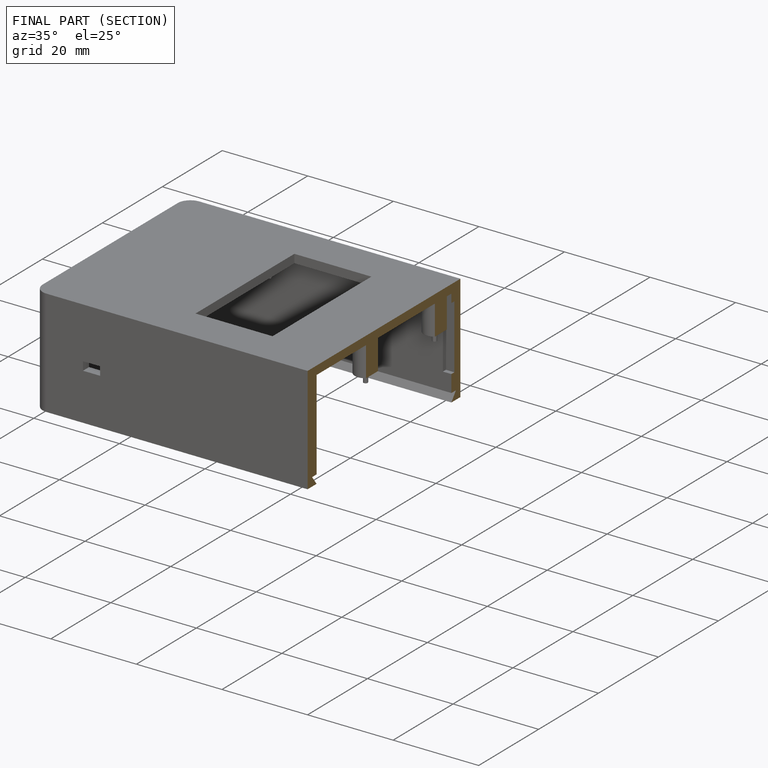
[diagram: finished part — half-section view (interior)]
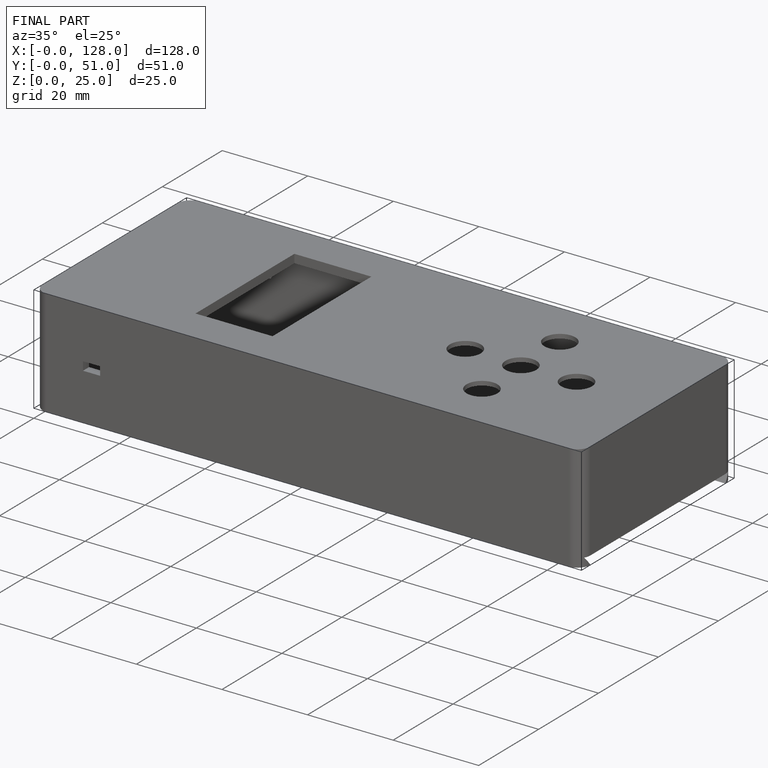
[diagram: finished part — iso view with bounding-box wireframe]
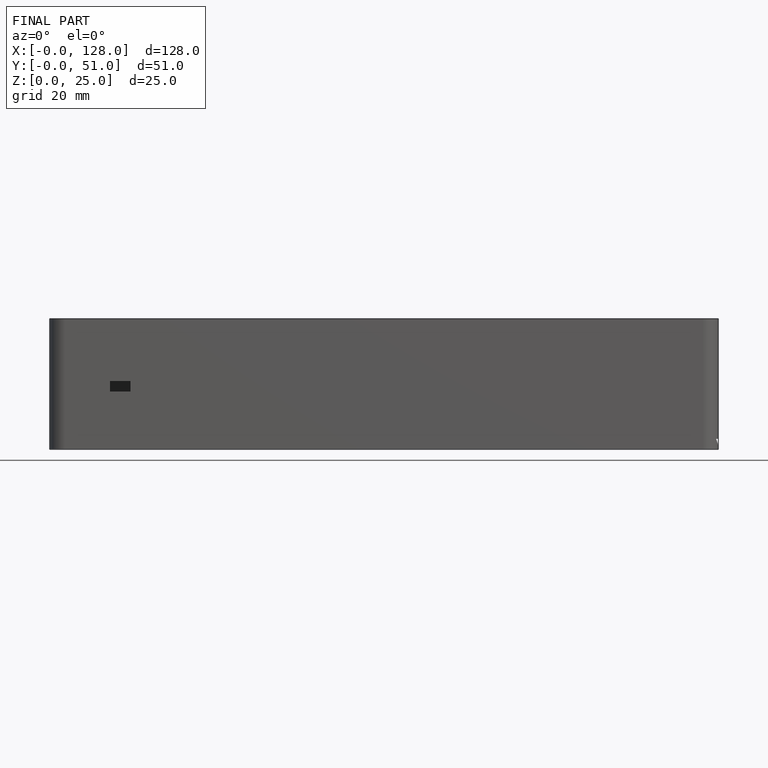
[diagram: finished part — front view with bounding-box wireframe]
